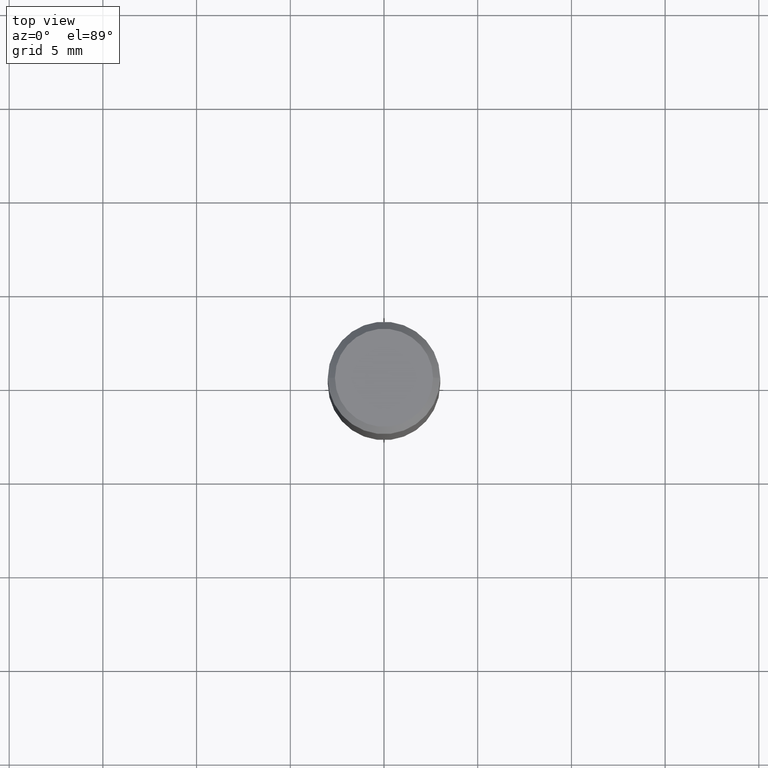
[diagram: clean part render]
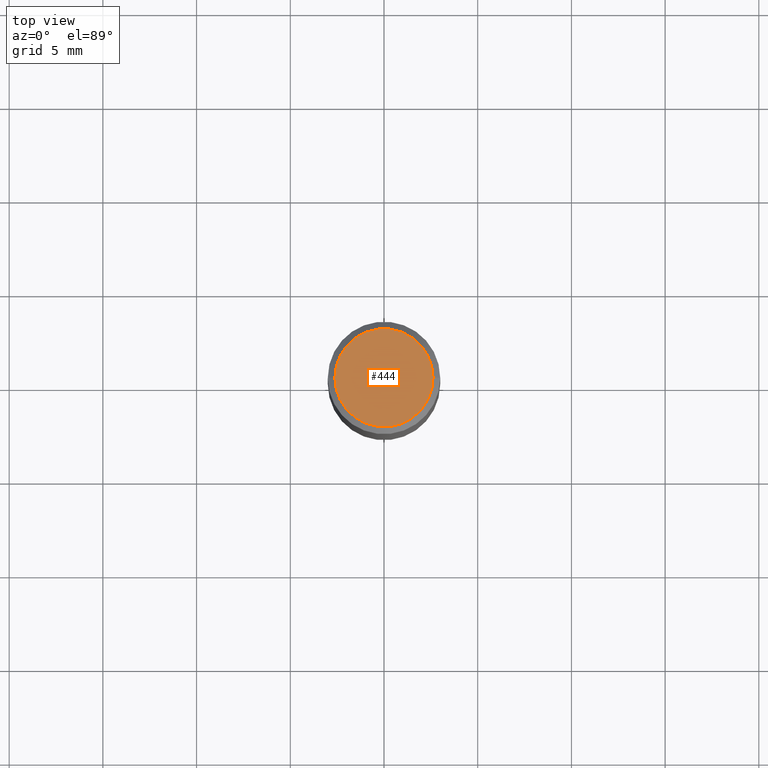
[diagram: same view with one face highlighted and labeled with its STEP entity id]
A machine part, top view. The second image highlights one B-rep face of the part: STEP entity #444.
In plain terms, the highlighted planar face has unit normal (0, -0, -1).
Its self-contained STEP definition (entity closure, byte-faithful):
#9 = CARTESIAN_POINT ( 'NONE',  ( 4.647400995173613138E-45, -6.635256932220833331E-31, -1.900413116462290932E-16 ) ) ;
#60 = EDGE_CURVE ( 'NONE', #261, #399, #101, .T. ) ;
#73 = CARTESIAN_POINT ( 'NONE',  ( -0.1031000000000000111, 7.461295621107772493E-16, -1.900413116462341961E-16 ) ) ;
#77 = EDGE_CURVE ( 'NONE', #399, #261, #158, .T. ) ;
#78 = AXIS2_PLACEMENT_3D ( 'NONE', #231, #122, #380 ) ;
#89 = ORIENTED_EDGE ( 'NONE', *, *, #60, .T. ) ;
#101 = CIRCLE ( 'NONE', #150, 0.1031000000000000111 ) ;
#122 = DIRECTION ( 'NONE',  ( -2.445468806185136597E-29, 3.491481338843145583E-15, 1.000000000000000000 ) ) ;
#150 = AXIS2_PLACEMENT_3D ( 'NONE', #9, #299, #272 ) ;
#156 = EDGE_LOOP ( 'NONE', ( #359, #89 ) ) ;
#158 = CIRCLE ( 'NONE', #78, 0.1031000000000000111 ) ;
#177 = AXIS2_PLACEMENT_3D ( 'NONE', #356, #199, #195 ) ;
#195 = DIRECTION ( 'NONE',  ( -1.000000000000000000, 6.982962677686265922E-15, -4.876176775795935793E-29 ) ) ;
#199 = DIRECTION ( 'NONE',  ( 2.438088387897960049E-29, -3.491481338843145188E-15, -1.000000000000000000 ) ) ;
#214 = PLANE ( 'NONE',  #177 ) ;
#231 = CARTESIAN_POINT ( 'NONE',  ( 4.647400995173613138E-45, -6.635256932220833331E-31, -1.900413116462290932E-16 ) ) ;
#261 = VERTEX_POINT ( 'NONE', #351 ) ;
#272 = DIRECTION ( 'NONE',  ( 1.000000000000000000, -6.982962677686265922E-15, 4.883331232093008327E-29 ) ) ;
#299 = DIRECTION ( 'NONE',  ( -2.445468806185136597E-29, 3.491481338843145583E-15, 1.000000000000000000 ) ) ;
#351 = CARTESIAN_POINT ( 'NONE',  ( 0.1031000000000000111, -7.849571885948552706E-16, -1.900413116462238423E-16 ) ) ;
#356 = CARTESIAN_POINT ( 'NONE',  ( 7.199434520694541042E-16, 0.1031000000000000111, -4.549923818578428559E-16 ) ) ;
#359 = ORIENTED_EDGE ( 'NONE', *, *, #77, .T. ) ;
#380 = DIRECTION ( 'NONE',  ( 1.000000000000000000, -6.982962677686265922E-15, 4.883331232093008327E-29 ) ) ;
#398 = FACE_OUTER_BOUND ( 'NONE', #156, .T. ) ;
#399 = VERTEX_POINT ( 'NONE', #73 ) ;
#444 = ADVANCED_FACE ( 'NONE', ( #398 ), #214, .F. ) ;